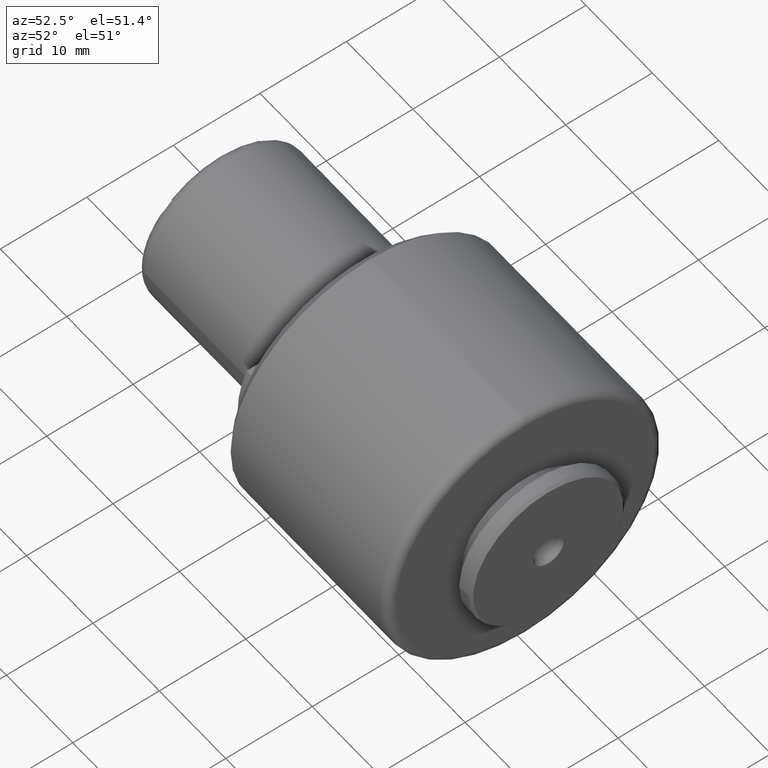
[diagram: clean part render]
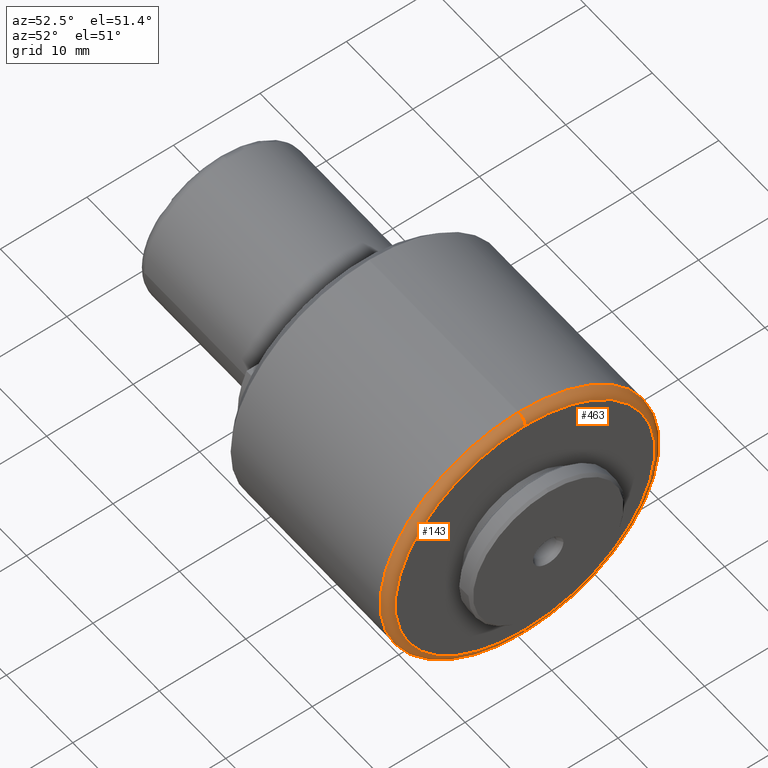
[diagram: same view with one multi-face feature highlighted, each face labeled with its STEP entity id]
A machine part, auxiliary view. The highlighted faces form ONE feature: a constant-radius fillet chain: 2 tangent blend faces with common blend radius 1 mm. The faces share edges in the B-rep.
Their STEP definitions:
[1] entity #143 (Torus):
#5 = CARTESIAN_POINT ( 'NONE',  ( 46.00000000000000000, 0.0000000000000000000, -15.00000000000000000 ) ) ;
#13 = DIRECTION ( 'NONE',  ( 1.000000000000000000, -0.0000000000000000000, 0.0000000000000000000 ) ) ;
#42 = CARTESIAN_POINT ( 'NONE',  ( 45.00000000000000000, 0.0000000000000000000, 16.00000000000000000 ) ) ;
#63 = CARTESIAN_POINT ( 'NONE',  ( 45.00000000000000000, 1.836970198721029600E-015, 15.00000000000000000 ) ) ;
#67 = VERTEX_POINT ( 'NONE', #5 ) ;
#106 = DIRECTION ( 'NONE',  ( 0.0000000000000000000, 0.0000000000000000000, -1.000000000000000000 ) ) ;
#111 = CARTESIAN_POINT ( 'NONE',  ( 45.00000000000000000, 1.959434878635765100E-015, -16.00000000000000000 ) ) ;
#138 = EDGE_CURVE ( 'NONE', #1025, #67, #433, .T. ) ;
#141 = AXIS2_PLACEMENT_3D ( 'NONE', #63, #367, #183 ) ;
#143 = ADVANCED_FACE ( 'NONE', ( #174 ), #702, .T. ) ;
#174 = FACE_OUTER_BOUND ( 'NONE', #1065, .T. ) ;
#183 = DIRECTION ( 'NONE',  ( 0.0000000000000000000, 1.224646799147353500E-016, 1.000000000000000000 ) ) ;
#190 = CIRCLE ( 'NONE', #923, 16.00000000000000000 ) ;
#252 = CARTESIAN_POINT ( 'NONE',  ( 45.00000000000000000, 0.0000000000000000000, 0.0000000000000000000 ) ) ;
#274 = DIRECTION ( 'NONE',  ( 0.0000000000000000000, 0.0000000000000000000, -1.000000000000000000 ) ) ;
#361 = DIRECTION ( 'NONE',  ( -1.000000000000000000, 0.0000000000000000000, -0.0000000000000000000 ) ) ;
#367 = DIRECTION ( 'NONE',  ( 0.0000000000000000000, 1.000000000000000000, -1.224646799147353200E-016 ) ) ;
#417 = CARTESIAN_POINT ( 'NONE',  ( 46.00000000000000000, 1.898202538678397200E-015, 15.00000000000000000 ) ) ;
#427 = VERTEX_POINT ( 'NONE', #42 ) ;
#432 = AXIS2_PLACEMENT_3D ( 'NONE', #602, #13, #106 ) ;
#433 = CIRCLE ( 'NONE', #613, 1.000000000000000900 ) ;
#552 = EDGE_CURVE ( 'NONE', #427, #740, #1026, .T. ) ;
#572 = ORIENTED_EDGE ( 'NONE', *, *, #552, .F. ) ;
#580 = CIRCLE ( 'NONE', #432, 15.00000000000000000 ) ;
#602 = CARTESIAN_POINT ( 'NONE',  ( 46.00000000000000000, 0.0000000000000000000, 0.0000000000000000000 ) ) ;
#613 = AXIS2_PLACEMENT_3D ( 'NONE', #829, #667, #799 ) ;
#645 = ORIENTED_EDGE ( 'NONE', *, *, #671, .F. ) ;
#667 = DIRECTION ( 'NONE',  ( 0.0000000000000000000, -1.000000000000000000, -0.0000000000000000000 ) ) ;
#671 = EDGE_CURVE ( 'NONE', #740, #67, #580, .T. ) ;
#678 = DIRECTION ( 'NONE',  ( 1.000000000000000000, -0.0000000000000000000, 0.0000000000000000000 ) ) ;
#702 = TOROIDAL_SURFACE ( 'NONE', #841, 15.00000000000000000, 1.000000000000000000 ) ;
#740 = VERTEX_POINT ( 'NONE', #417 ) ;
#799 = DIRECTION ( 'NONE',  ( 0.0000000000000000000, 0.0000000000000000000, -1.000000000000000000 ) ) ;
#829 = CARTESIAN_POINT ( 'NONE',  ( 45.00000000000000000, 0.0000000000000000000, -15.00000000000000000 ) ) ;
#840 = CARTESIAN_POINT ( 'NONE',  ( 45.00000000000000000, 0.0000000000000000000, 0.0000000000000000000 ) ) ;
#841 = AXIS2_PLACEMENT_3D ( 'NONE', #252, #678, #1061 ) ;
#923 = AXIS2_PLACEMENT_3D ( 'NONE', #840, #361, #274 ) ;
#975 = EDGE_CURVE ( 'NONE', #1025, #427, #190, .T. ) ;
#1025 = VERTEX_POINT ( 'NONE', #111 ) ;
#1026 = CIRCLE ( 'NONE', #141, 1.000000000000000900 ) ;
#1061 = DIRECTION ( 'NONE',  ( 0.0000000000000000000, 0.0000000000000000000, -1.000000000000000000 ) ) ;
#1065 = EDGE_LOOP ( 'NONE', ( #572, #1114, #1149, #645 ) ) ;
#1114 = ORIENTED_EDGE ( 'NONE', *, *, #975, .F. ) ;
#1149 = ORIENTED_EDGE ( 'NONE', *, *, #138, .T. ) ;
[2] entity #463 (Torus):
#5 = CARTESIAN_POINT ( 'NONE',  ( 46.00000000000000000, 0.0000000000000000000, -15.00000000000000000 ) ) ;
#31 = AXIS2_PLACEMENT_3D ( 'NONE', #498, #462, #1062 ) ;
#42 = CARTESIAN_POINT ( 'NONE',  ( 45.00000000000000000, 0.0000000000000000000, 16.00000000000000000 ) ) ;
#63 = CARTESIAN_POINT ( 'NONE',  ( 45.00000000000000000, 1.836970198721029600E-015, 15.00000000000000000 ) ) ;
#64 = EDGE_CURVE ( 'NONE', #67, #740, #78, .T. ) ;
#67 = VERTEX_POINT ( 'NONE', #5 ) ;
#78 = CIRCLE ( 'NONE', #31, 15.00000000000000000 ) ;
#111 = CARTESIAN_POINT ( 'NONE',  ( 45.00000000000000000, 1.959434878635765100E-015, -16.00000000000000000 ) ) ;
#138 = EDGE_CURVE ( 'NONE', #1025, #67, #433, .T. ) ;
#141 = AXIS2_PLACEMENT_3D ( 'NONE', #63, #367, #183 ) ;
#183 = DIRECTION ( 'NONE',  ( 0.0000000000000000000, 1.224646799147353500E-016, 1.000000000000000000 ) ) ;
#207 = DIRECTION ( 'NONE',  ( 0.0000000000000000000, 0.0000000000000000000, -1.000000000000000000 ) ) ;
#344 = DIRECTION ( 'NONE',  ( -1.000000000000000000, 0.0000000000000000000, -0.0000000000000000000 ) ) ;
#367 = DIRECTION ( 'NONE',  ( 0.0000000000000000000, 1.000000000000000000, -1.224646799147353200E-016 ) ) ;
#371 = TOROIDAL_SURFACE ( 'NONE', #1079, 15.00000000000000000, 1.000000000000000000 ) ;
#417 = CARTESIAN_POINT ( 'NONE',  ( 46.00000000000000000, 1.898202538678397200E-015, 15.00000000000000000 ) ) ;
#427 = VERTEX_POINT ( 'NONE', #42 ) ;
#428 = EDGE_LOOP ( 'NONE', ( #1198, #519, #708, #1222 ) ) ;
#433 = CIRCLE ( 'NONE', #613, 1.000000000000000900 ) ;
#462 = DIRECTION ( 'NONE',  ( 1.000000000000000000, -0.0000000000000000000, 0.0000000000000000000 ) ) ;
#463 = ADVANCED_FACE ( 'NONE', ( #1224 ), #371, .T. ) ;
#498 = CARTESIAN_POINT ( 'NONE',  ( 46.00000000000000000, 0.0000000000000000000, 0.0000000000000000000 ) ) ;
#519 = ORIENTED_EDGE ( 'NONE', *, *, #552, .T. ) ;
#520 = DIRECTION ( 'NONE',  ( 0.0000000000000000000, 0.0000000000000000000, -1.000000000000000000 ) ) ;
#552 = EDGE_CURVE ( 'NONE', #427, #740, #1026, .T. ) ;
#587 = CIRCLE ( 'NONE', #1052, 16.00000000000000000 ) ;
#613 = AXIS2_PLACEMENT_3D ( 'NONE', #829, #667, #799 ) ;
#667 = DIRECTION ( 'NONE',  ( 0.0000000000000000000, -1.000000000000000000, -0.0000000000000000000 ) ) ;
#708 = ORIENTED_EDGE ( 'NONE', *, *, #64, .F. ) ;
#740 = VERTEX_POINT ( 'NONE', #417 ) ;
#799 = DIRECTION ( 'NONE',  ( 0.0000000000000000000, 0.0000000000000000000, -1.000000000000000000 ) ) ;
#829 = CARTESIAN_POINT ( 'NONE',  ( 45.00000000000000000, 0.0000000000000000000, -15.00000000000000000 ) ) ;
#900 = CARTESIAN_POINT ( 'NONE',  ( 45.00000000000000000, 0.0000000000000000000, 0.0000000000000000000 ) ) ;
#918 = CARTESIAN_POINT ( 'NONE',  ( 45.00000000000000000, 0.0000000000000000000, 0.0000000000000000000 ) ) ;
#1025 = VERTEX_POINT ( 'NONE', #111 ) ;
#1026 = CIRCLE ( 'NONE', #141, 1.000000000000000900 ) ;
#1029 = EDGE_CURVE ( 'NONE', #427, #1025, #587, .T. ) ;
#1052 = AXIS2_PLACEMENT_3D ( 'NONE', #918, #344, #207 ) ;
#1062 = DIRECTION ( 'NONE',  ( 0.0000000000000000000, 0.0000000000000000000, -1.000000000000000000 ) ) ;
#1079 = AXIS2_PLACEMENT_3D ( 'NONE', #900, #1173, #520 ) ;
#1173 = DIRECTION ( 'NONE',  ( 1.000000000000000000, -0.0000000000000000000, 0.0000000000000000000 ) ) ;
#1198 = ORIENTED_EDGE ( 'NONE', *, *, #1029, .F. ) ;
#1222 = ORIENTED_EDGE ( 'NONE', *, *, #138, .F. ) ;
#1224 = FACE_OUTER_BOUND ( 'NONE', #428, .T. ) ;